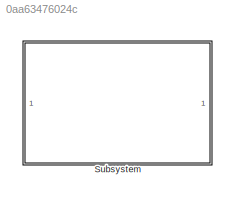
MODEL slx_0aa63476024c
KIND library
CONFIG AbsTol = auto
CONFIG EnableMultiTasking = off
CONFIG FixedStep = auto
CONFIG MaxStep = auto
CONFIG MinStep = auto
CONFIG RelTol = 1e-3
CONFIG SampleTimeConstraint = Unconstrained
CONFIG SolverName = VariableStepAuto
CONFIG StartTime = 0.0
CONFIG StopTime = 10.0
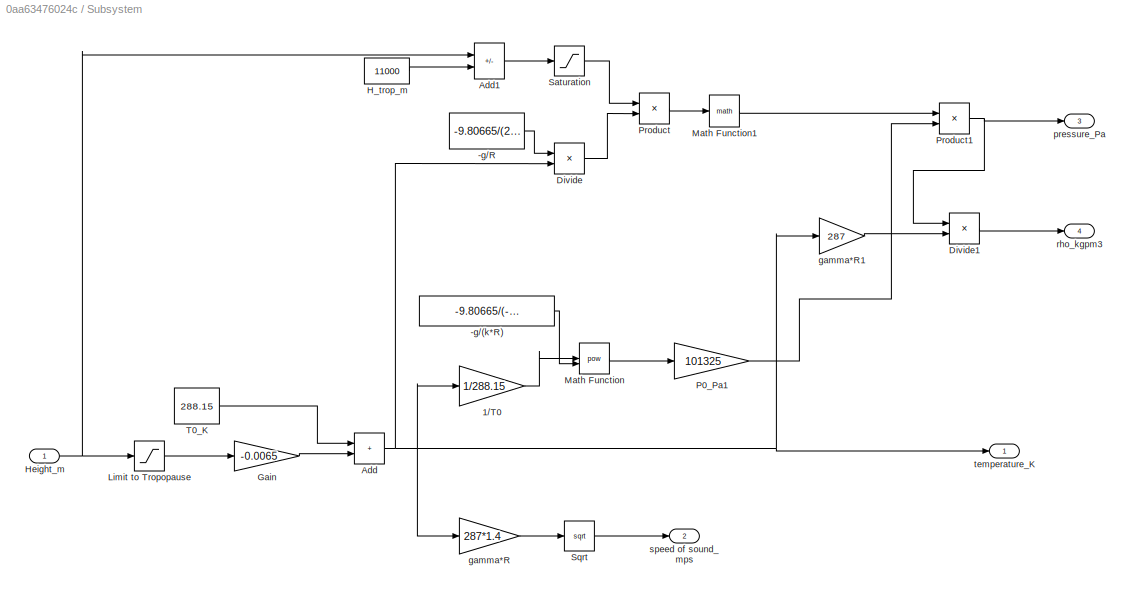
BLOCK [SubSystem] Subsystem
BLOCK [Constant] Subsystem/-g//(k*R)
  Value = -9.80665/(-0.0065*287)
BLOCK [Constant] Subsystem/-g//R
  Value = -9.80665/(287)
BLOCK [Gain] Subsystem/1//T0
  Gain = 1/288.15
BLOCK [Sum] Subsystem/Add
  IconShape = rectangular
BLOCK [Sum] Subsystem/Add1
  IconShape = rectangular
  Inputs = +-
BLOCK [Product] Subsystem/Divide
  Inputs = */
BLOCK [Product] Subsystem/Divide1
  Inputs = */
BLOCK [Gain] Subsystem/Gain
  Gain = -0.0065
BLOCK [Constant] Subsystem/H_trop_m
  Value = 11000
BLOCK [Inport] Subsystem/Height_m
BLOCK [Saturate] Subsystem/Limit to Tropopause
  LowerLimit = 0
  UpperLimit = 1100
BLOCK [Math] Subsystem/Math Function
  Operator = pow
BLOCK [Math] Subsystem/Math Function1
BLOCK [Gain] Subsystem/P0_Pa1
  Gain = 101325
BLOCK [Product] Subsystem/Product
  NameLocation = top
BLOCK [Product] Subsystem/Product1
BLOCK [Saturate] Subsystem/Saturation
  LowerLimit = 0
  UpperLimit = inf
BLOCK [Sqrt] Subsystem/Sqrt
BLOCK [Constant] Subsystem/T0_K
  Value = 288.15
BLOCK [Gain] Subsystem/gamma*R
  Gain = 287*1.4
BLOCK [Gain] Subsystem/gamma*R1
  Gain = 287
BLOCK [Outport] Subsystem/pressure_Pa
  Port = 3
BLOCK [Outport] Subsystem/rho_kgpm3
  Port = 4
BLOCK [Outport] Subsystem/speed of sound_mps
  Port = 2
BLOCK [Outport] Subsystem/temperature_K
LINE Subsystem/-g//(k*R):1 -> Subsystem/Math Function:2
LINE Subsystem/-g//R:1 -> Subsystem/Divide:1
LINE Subsystem/1//T0:1 -> Subsystem/Math Function:1
LINE Subsystem/Add1:1 -> Subsystem/Saturation:1
NET Subsystem/Add:1 -> Subsystem/1//T0:1, Subsystem/Divide:2, Subsystem/gamma*R1:1, Subsystem/gamma*R:1, Subsystem/temperature_K:1
LINE Subsystem/Divide1:1 -> Subsystem/rho_kgpm3:1
LINE Subsystem/Divide:1 -> Subsystem/Product:2
LINE Subsystem/Gain:1 -> Subsystem/Add:2
LINE Subsystem/H_trop_m:1 -> Subsystem/Add1:2
NET Subsystem/Height_m:1 -> Subsystem/Add1:1, Subsystem/Limit to Tropopause:1
LINE Subsystem/Limit to Tropopause:1 -> Subsystem/Gain:1
LINE Subsystem/Math Function1:1 -> Subsystem/Product1:1
LINE Subsystem/Math Function:1 -> Subsystem/P0_Pa1:1
LINE Subsystem/P0_Pa1:1 -> Subsystem/Product1:2
NET Subsystem/Product1:1 -> Subsystem/Divide1:1, Subsystem/pressure_Pa:1
LINE Subsystem/Product:1 -> Subsystem/Math Function1:1
LINE Subsystem/Saturation:1 -> Subsystem/Product:1
LINE Subsystem/Sqrt:1 -> Subsystem/speed of sound_mps:1
LINE Subsystem/T0_K:1 -> Subsystem/Add:1
LINE Subsystem/gamma*R1:1 -> Subsystem/Divide1:2
LINE Subsystem/gamma*R:1 -> Subsystem/Sqrt:1
note: NET lines group one-source signal fan-out (src -> all destinations, sorted); 1:1 wires keep LINE
